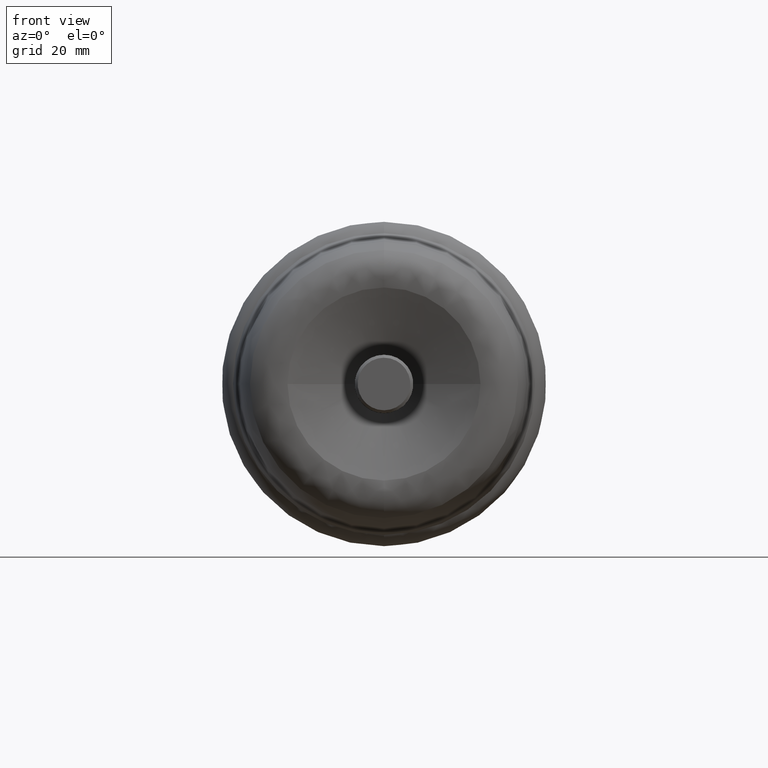
[diagram: clean part render]
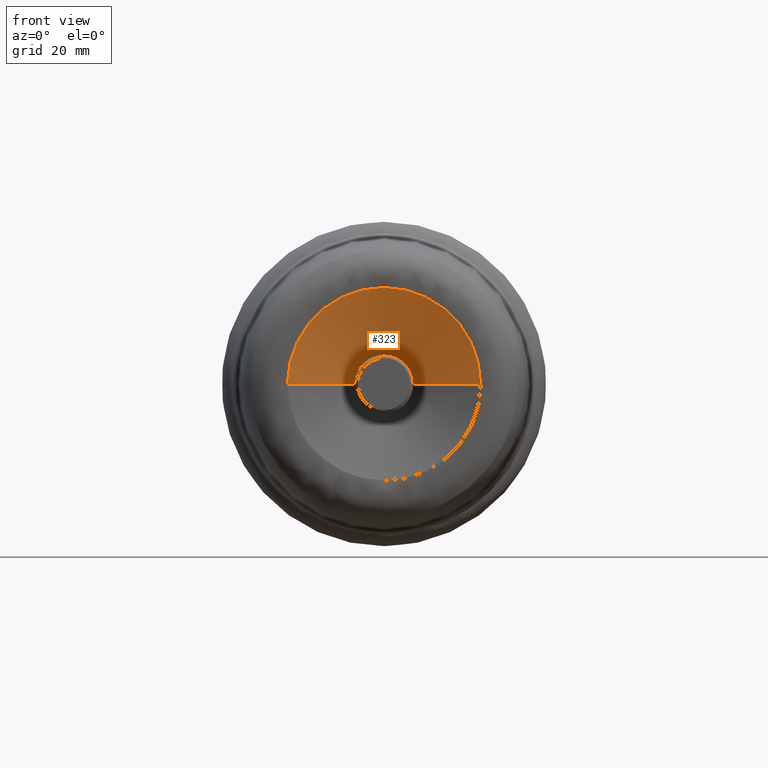
[diagram: same view with one face highlighted and labeled with its STEP entity id]
A machine part, front view. The second image highlights one B-rep face of the part: STEP entity #323.
In plain terms, the highlighted conical surface has half-angle 68.171 deg.
Its self-contained STEP definition (entity closure, byte-faithful):
#1 = CARTESIAN_POINT ( 'NONE',  ( 6.123233995736765296E-16, 47.79664580457854584, 4.999999999999999112 ) ) ;
#17 = AXIS2_PLACEMENT_3D ( 'NONE', #1518, #1368, #71 ) ;
#18 = ORIENTED_EDGE ( 'NONE', *, *, #1241, .F. ) ;
#71 = DIRECTION ( 'NONE',  ( 0.0000000000000000000, 0.0000000000000000000, -1.000000000000000000 ) ) ;
#95 = EDGE_CURVE ( 'NONE', #1481, #772, #986, .T. ) ;
#104 = CARTESIAN_POINT ( 'NONE',  ( -16.51543708133263877, 43.18403729489158138, 2.022557715817352481E-15 ) ) ;
#128 = CIRCLE ( 'NONE', #530, 16.51543708133262101 ) ;
#322 = EDGE_CURVE ( 'NONE', #772, #358, #1032, .T. ) ;
#323 = ADVANCED_FACE ( 'NONE', ( #1376 ), #596, .F. ) ;
#358 = VERTEX_POINT ( 'NONE', #1377 ) ;
#422 = DIRECTION ( 'NONE',  ( 0.0000000000000000000, 0.0000000000000000000, -1.000000000000000000 ) ) ;
#528 = VERTEX_POINT ( 'NONE', #1547 ) ;
#530 = AXIS2_PLACEMENT_3D ( 'NONE', #1552, #1546, #1688 ) ;
#596 = CONICAL_SURFACE ( 'NONE', #888, 16.51543708133262101, 1.189808404377050044 ) ;
#612 = DIRECTION ( 'NONE',  ( 0.9282977418051572283, -0.3718377368684431250, 0.0000000000000000000 ) ) ;
#653 = ORIENTED_EDGE ( 'NONE', *, *, #95, .F. ) ;
#737 = CIRCLE ( 'NONE', #1477, 16.51543708133262101 ) ;
#772 = VERTEX_POINT ( 'NONE', #1 ) ;
#796 = CARTESIAN_POINT ( 'NONE',  ( 0.0000000000000000000, 43.18403729489158138, 0.0000000000000000000 ) ) ;
#835 = LINE ( 'NONE', #1488, #1541 ) ;
#856 = DIRECTION ( 'NONE',  ( 0.0000000000000000000, 1.000000000000000000, 0.0000000000000000000 ) ) ;
#888 = AXIS2_PLACEMENT_3D ( 'NONE', #796, #1076, #1101 ) ;
#932 = EDGE_CURVE ( 'NONE', #358, #1094, #1693, .T. ) ;
#986 = CIRCLE ( 'NONE', #1332, 4.999999999999999112 ) ;
#1032 = CIRCLE ( 'NONE', #17, 4.999999999999999112 ) ;
#1045 = EDGE_CURVE ( 'NONE', #1094, #1185, #128, .T. ) ;
#1076 = DIRECTION ( 'NONE',  ( -2.100729720241631567E-16, -1.000000000000000000, 0.0000000000000000000 ) ) ;
#1094 = VERTEX_POINT ( 'NONE', #104 ) ;
#1101 = DIRECTION ( 'NONE',  ( 1.000000000000000000, -4.201459440483262641E-16, 0.0000000000000000000 ) ) ;
#1124 = CARTESIAN_POINT ( 'NONE',  ( 2.416316302532477464E-15, 43.18403729489158138, 16.51543708133262101 ) ) ;
#1185 = VERTEX_POINT ( 'NONE', #1124 ) ;
#1241 = EDGE_CURVE ( 'NONE', #1185, #528, #737, .T. ) ;
#1253 = EDGE_LOOP ( 'NONE', ( #1525, #1323, #653, #1609, #18, #1277 ) ) ;
#1257 = VECTOR ( 'NONE', #1522, 1000.000000000000000 ) ;
#1277 = ORIENTED_EDGE ( 'NONE', *, *, #1045, .F. ) ;
#1282 = DIRECTION ( 'NONE',  ( -0.0000000000000000000, -1.000000000000000000, -0.0000000000000000000 ) ) ;
#1288 = DIRECTION ( 'NONE',  ( 0.0000000000000000000, 0.0000000000000000000, -1.000000000000000000 ) ) ;
#1323 = ORIENTED_EDGE ( 'NONE', *, *, #322, .F. ) ;
#1332 = AXIS2_PLACEMENT_3D ( 'NONE', #1445, #1282, #1288 ) ;
#1368 = DIRECTION ( 'NONE',  ( -0.0000000000000000000, -1.000000000000000000, -0.0000000000000000000 ) ) ;
#1371 = CARTESIAN_POINT ( 'NONE',  ( -16.51543708133262101, 43.18403729489158849, 2.022557715817350114E-15 ) ) ;
#1376 = FACE_OUTER_BOUND ( 'NONE', #1253, .T. ) ;
#1377 = CARTESIAN_POINT ( 'NONE',  ( -4.999999999999999112, 47.79664580457854584, 1.317440557695513322E-15 ) ) ;
#1402 = EDGE_CURVE ( 'NONE', #1481, #528, #835, .T. ) ;
#1445 = CARTESIAN_POINT ( 'NONE',  ( 0.0000000000000000000, 47.79664580457854584, 0.0000000000000000000 ) ) ;
#1477 = AXIS2_PLACEMENT_3D ( 'NONE', #1712, #856, #422 ) ;
#1481 = VERTEX_POINT ( 'NONE', #1639 ) ;
#1488 = CARTESIAN_POINT ( 'NONE',  ( 16.51543708133262101, 43.18403729489158138, 0.0000000000000000000 ) ) ;
#1518 = CARTESIAN_POINT ( 'NONE',  ( 0.0000000000000000000, 47.79664580457854584, 0.0000000000000000000 ) ) ;
#1522 = DIRECTION ( 'NONE',  ( -0.9282977418051574503, -0.3718377368684426809, 1.136836858157402140E-16 ) ) ;
#1525 = ORIENTED_EDGE ( 'NONE', *, *, #932, .F. ) ;
#1541 = VECTOR ( 'NONE', #612, 1000.000000000000227 ) ;
#1546 = DIRECTION ( 'NONE',  ( 0.0000000000000000000, 1.000000000000000000, 0.0000000000000000000 ) ) ;
#1547 = CARTESIAN_POINT ( 'NONE',  ( 16.51543708133260324, 43.18403729489158138, 0.0000000000000000000 ) ) ;
#1552 = CARTESIAN_POINT ( 'NONE',  ( 0.0000000000000000000, 43.18403729489158138, 0.0000000000000000000 ) ) ;
#1609 = ORIENTED_EDGE ( 'NONE', *, *, #1402, .T. ) ;
#1639 = CARTESIAN_POINT ( 'NONE',  ( 4.999999999999999112, 47.79664580457854584, 0.0000000000000000000 ) ) ;
#1688 = DIRECTION ( 'NONE',  ( 0.0000000000000000000, 0.0000000000000000000, -1.000000000000000000 ) ) ;
#1693 = LINE ( 'NONE', #1371, #1257 ) ;
#1712 = CARTESIAN_POINT ( 'NONE',  ( 0.0000000000000000000, 43.18403729489158138, 0.0000000000000000000 ) ) ;